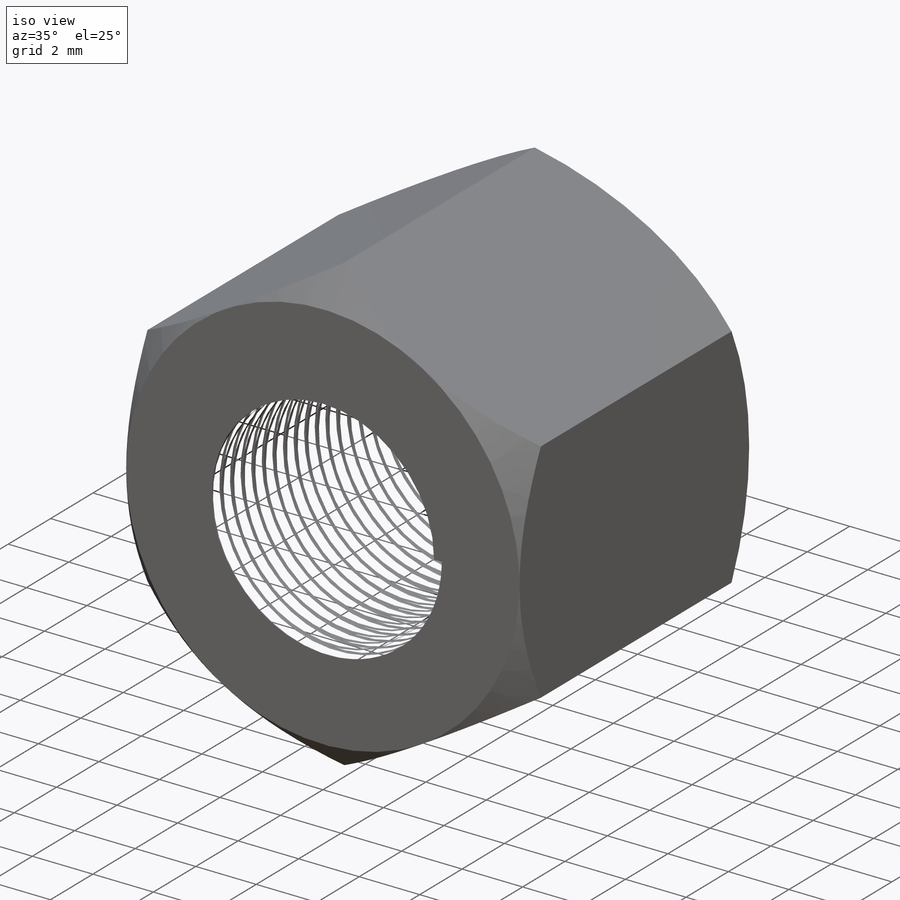
[diagram: iso view]
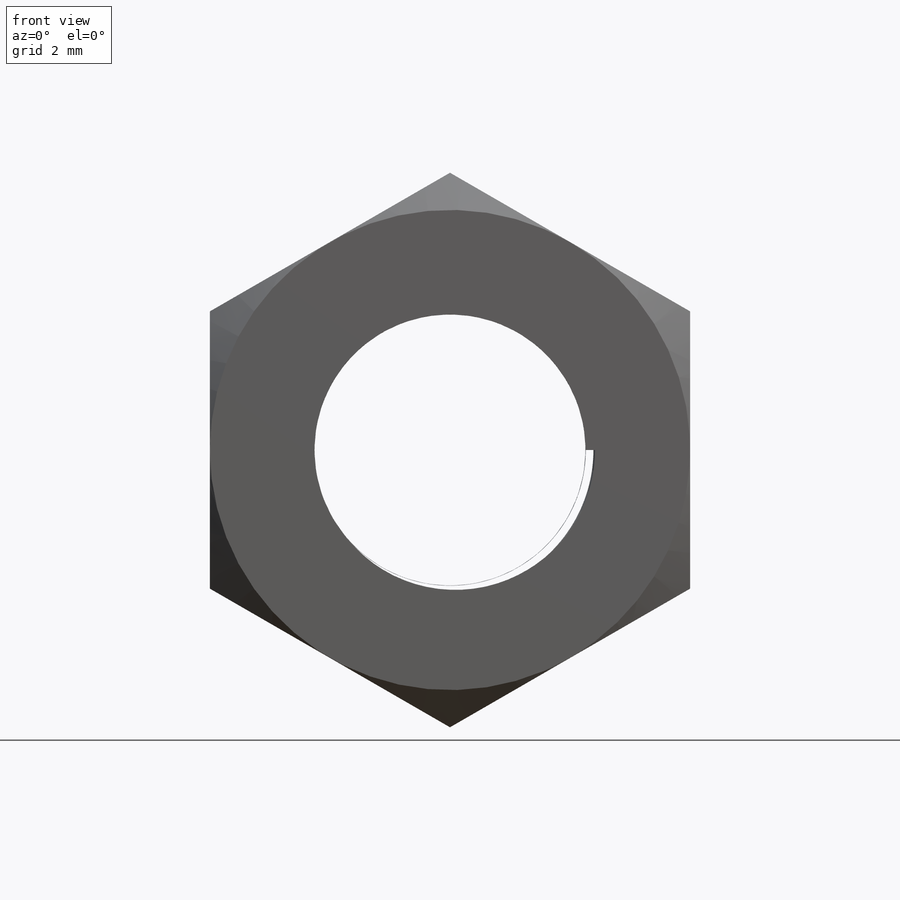
[diagram: front view]
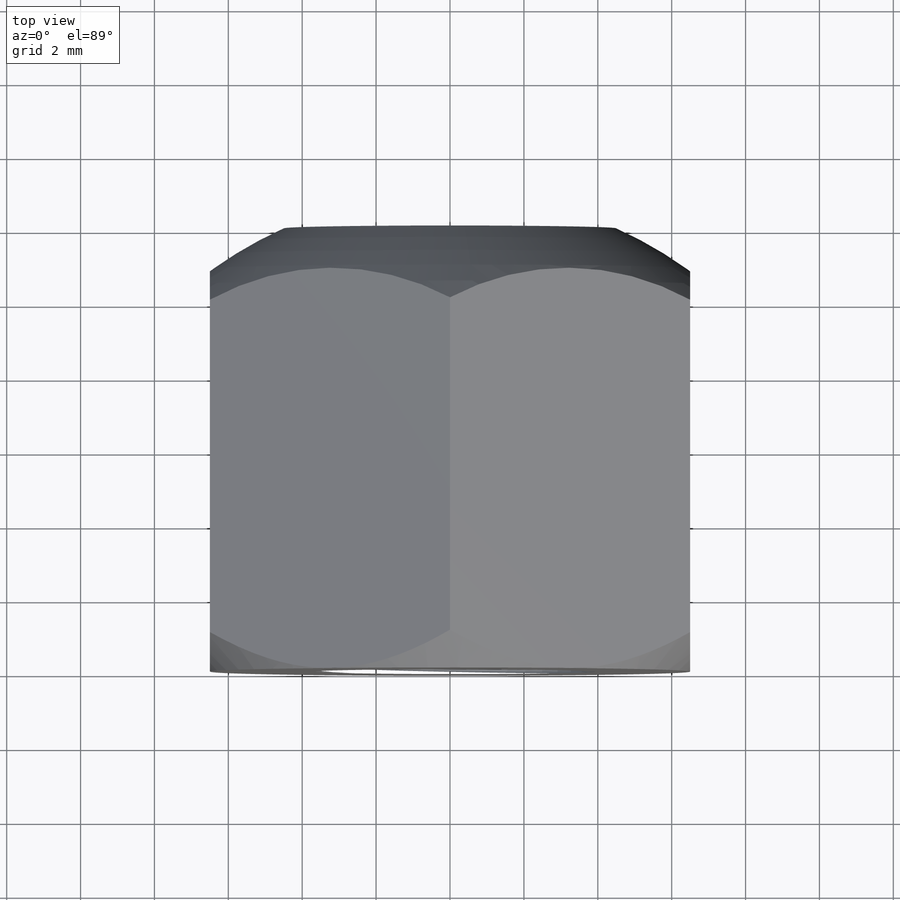
[diagram: top view]
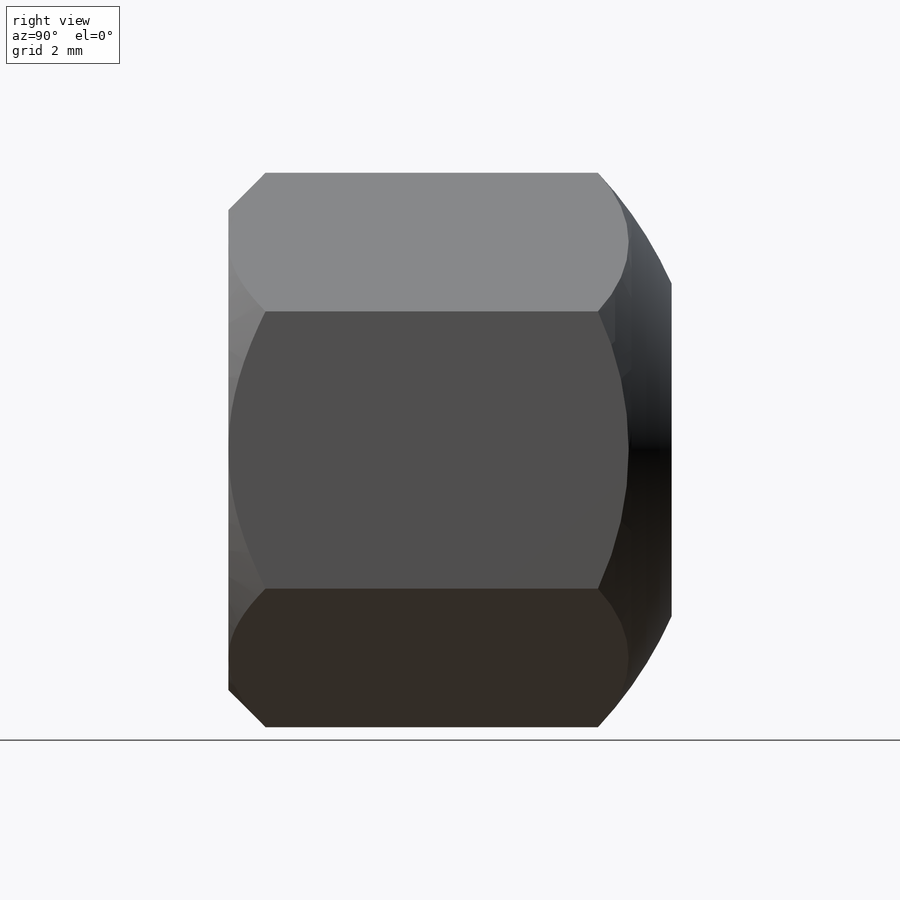
[diagram: right view]
SOLIDWORKS PART (.sldprt)
format: sldprt  version: not decoded by parser v0  size: 1,188,864 bytes
history: native  units: mm
features: sketch x6, plane x3, cut_extrude x2, material x1, extrude x1, chamfer x1, cut_revolve x1, helix x1, sweep x1 + 1 further entry (+9 scaffold rows collapsed)
feature tree (27):
  scaffold x9  (default folders/planes/origin — collapsed)
  material  "Material <sin especificar>"
  plane  "Alzado"
  plane  "Planta"
  plane  "Vista lateral"
  "Tabla de diseño"
  sketch  "Croquis1"  dims[S=13.0mm]
  extrude  "Saliente-Extruir1"  Depth=12mm H=12mm
  chamfer  "Chaflán1"  Distance=1.0062mm Angle=45deg
  sketch  "Croquis2"
  cut_extrude  "Cortar-Extruir1"  Depth=12mm
  sketch  "Croquis3"  dims[R=11.0mm D1H=9.0mm]
  cut_revolve  "Cortar-Revolución2"  Angle=360deg
  sketch  "Croquis7"  dims[D1=8.0mm]
  helix  "Hélice/Espiral1"  Pitch=12mm P=0.5mm
  sketch  "Croquis8"  dims[c1.Dint=7.35mm c2.Dint=7.3505mm]
  cut_extrude  "Cortar-Extruir2"  [1 undecoded]
  sketch  "Croquis9"  dims[Paso=0.499mm Hp=~0.360112mm]
  sweep  "Cortar-Barrer1"
decode coverage: 10 of 13 modeling features carry decoded parameters; 1 rows unclassified (native names shown)
note: ~ marks probable driven/reference dimensions
note: 1 parameter value undecoded
note: suppression state not decoded; provenance and decode notes live in map.json
